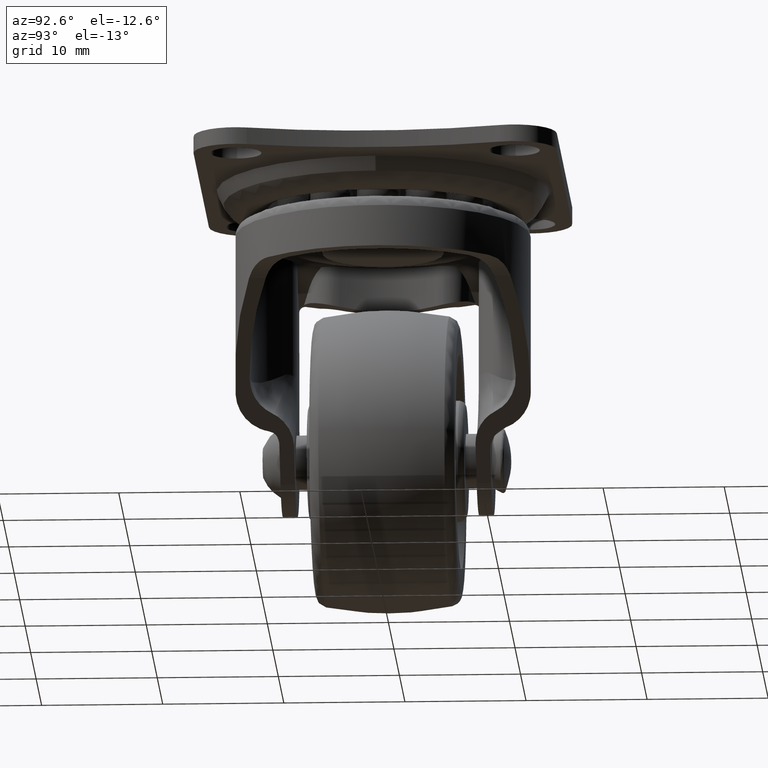
[diagram: clean part render]
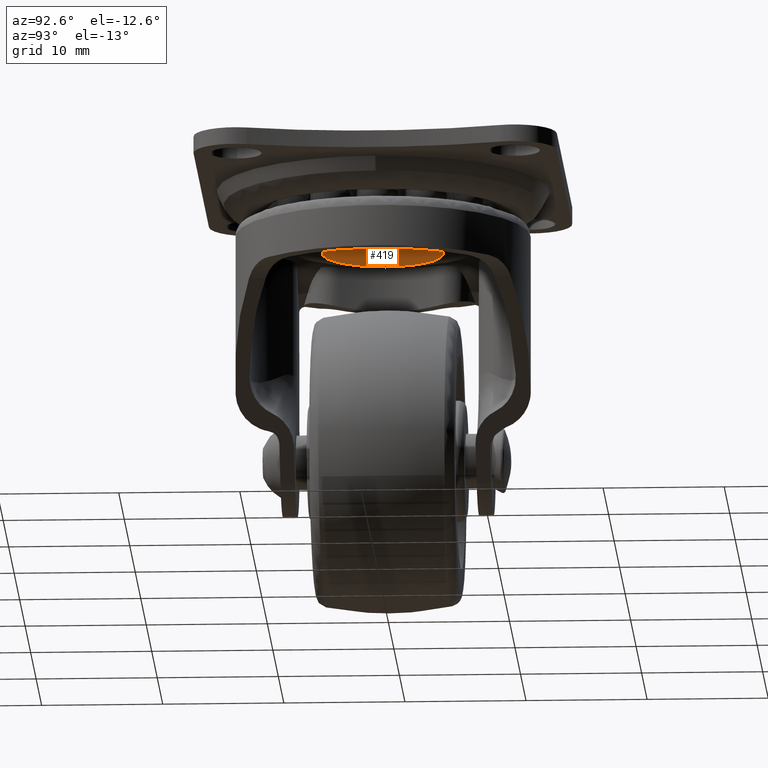
[diagram: same view with one face highlighted and labeled with its STEP entity id]
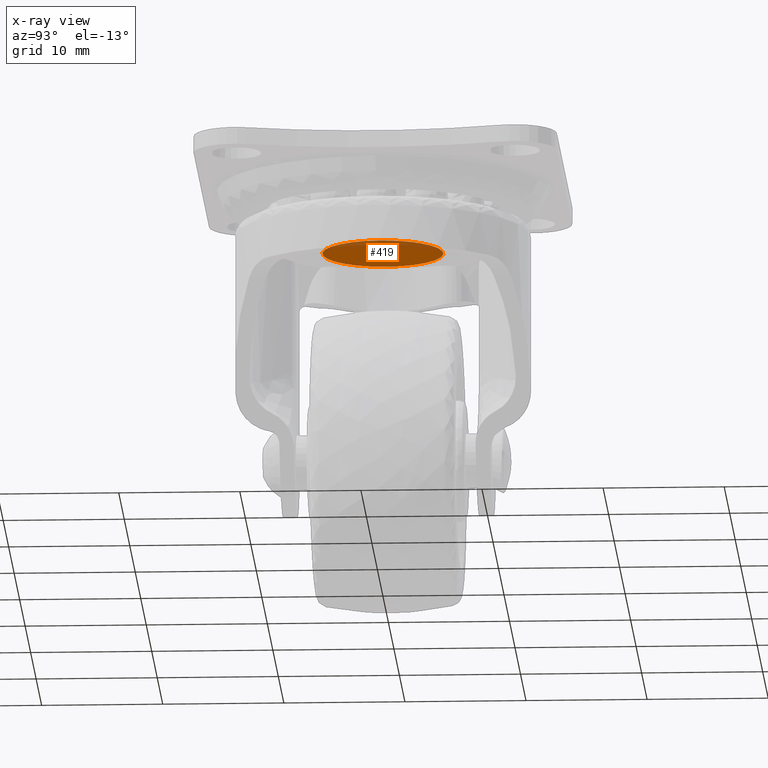
[diagram: x-ray of the same camera — body ghosted, the highlighted face saturated]
A machine part, auxiliary view. The second image highlights one B-rep face of the part: STEP entity #419.
The next image is the same camera in x-ray: the body ghosted, the highlighted face saturated — about 29% of this face is hidden behind the body in this view.
In plain terms, the highlighted planar face has unit normal (0, 0, -1).
Its self-contained STEP definition (entity closure, byte-faithful):
#419=ADVANCED_FACE('',(#2475),#2474,.T.);
#2474=PLANE('',#5023);
#2475=FACE_OUTER_BOUND('',#5024,.T.);
#5020=CARTESIAN_POINT('',(-6.50000000000E+00,1.03923048454E+01,-6.89999800000E+00));
#5021=DIRECTION('',(0.00000000000E+00,0.00000000000E+00,-1.00000000000E+00));
#5022=DIRECTION('',(1.00000000000E+00,0.00000000000E+00,0.00000000000E+00));
#5023=AXIS2_PLACEMENT_3D('',#5020,#5021,#5022);
#5024=EDGE_LOOP('',(#6242,#6243));
#6242=ORIENTED_EDGE('',*,*,#6889,.T.);
#6243=ORIENTED_EDGE('',*,*,#6890,.T.);
#6889=EDGE_CURVE('',#10098,#10099,#10100,.T.);
#6890=EDGE_CURVE('',#10099,#10098,#10106,.T.);
#10098=VERTEX_POINT('',#13279);
#10099=VERTEX_POINT('',#13280);
#10100=CIRCLE('',#13284,5.00000000000E+00);
#10106=CIRCLE('',#13288,5.00000000000E+00);
#13279=CARTESIAN_POINT('',(-5.00000000000E+00,0.00000000000E+00,-6.89999800000E+00));
#13280=CARTESIAN_POINT('',(5.00000000000E+00,2.96059473233E-16,-6.89999800000E+00));
#13281=CARTESIAN_POINT('',(0.00000000000E+00,0.00000000000E+00,-6.89999800000E+00));
#13282=DIRECTION('',(-0.00000000000E+00,0.00000000000E+00,-1.00000000000E+00));
#13283=DIRECTION('',(-1.00000000000E+00,-1.22460635382E-16,0.00000000000E+00));
#13284=AXIS2_PLACEMENT_3D('',#13281,#13282,#13283);
#13285=CARTESIAN_POINT('',(0.00000000000E+00,0.00000000000E+00,-6.89999800000E+00));
#13286=DIRECTION('',(-0.00000000000E+00,0.00000000000E+00,-1.00000000000E+00));
#13287=DIRECTION('',(-1.00000000000E+00,-1.22460635382E-16,0.00000000000E+00));
#13288=AXIS2_PLACEMENT_3D('',#13285,#13286,#13287);